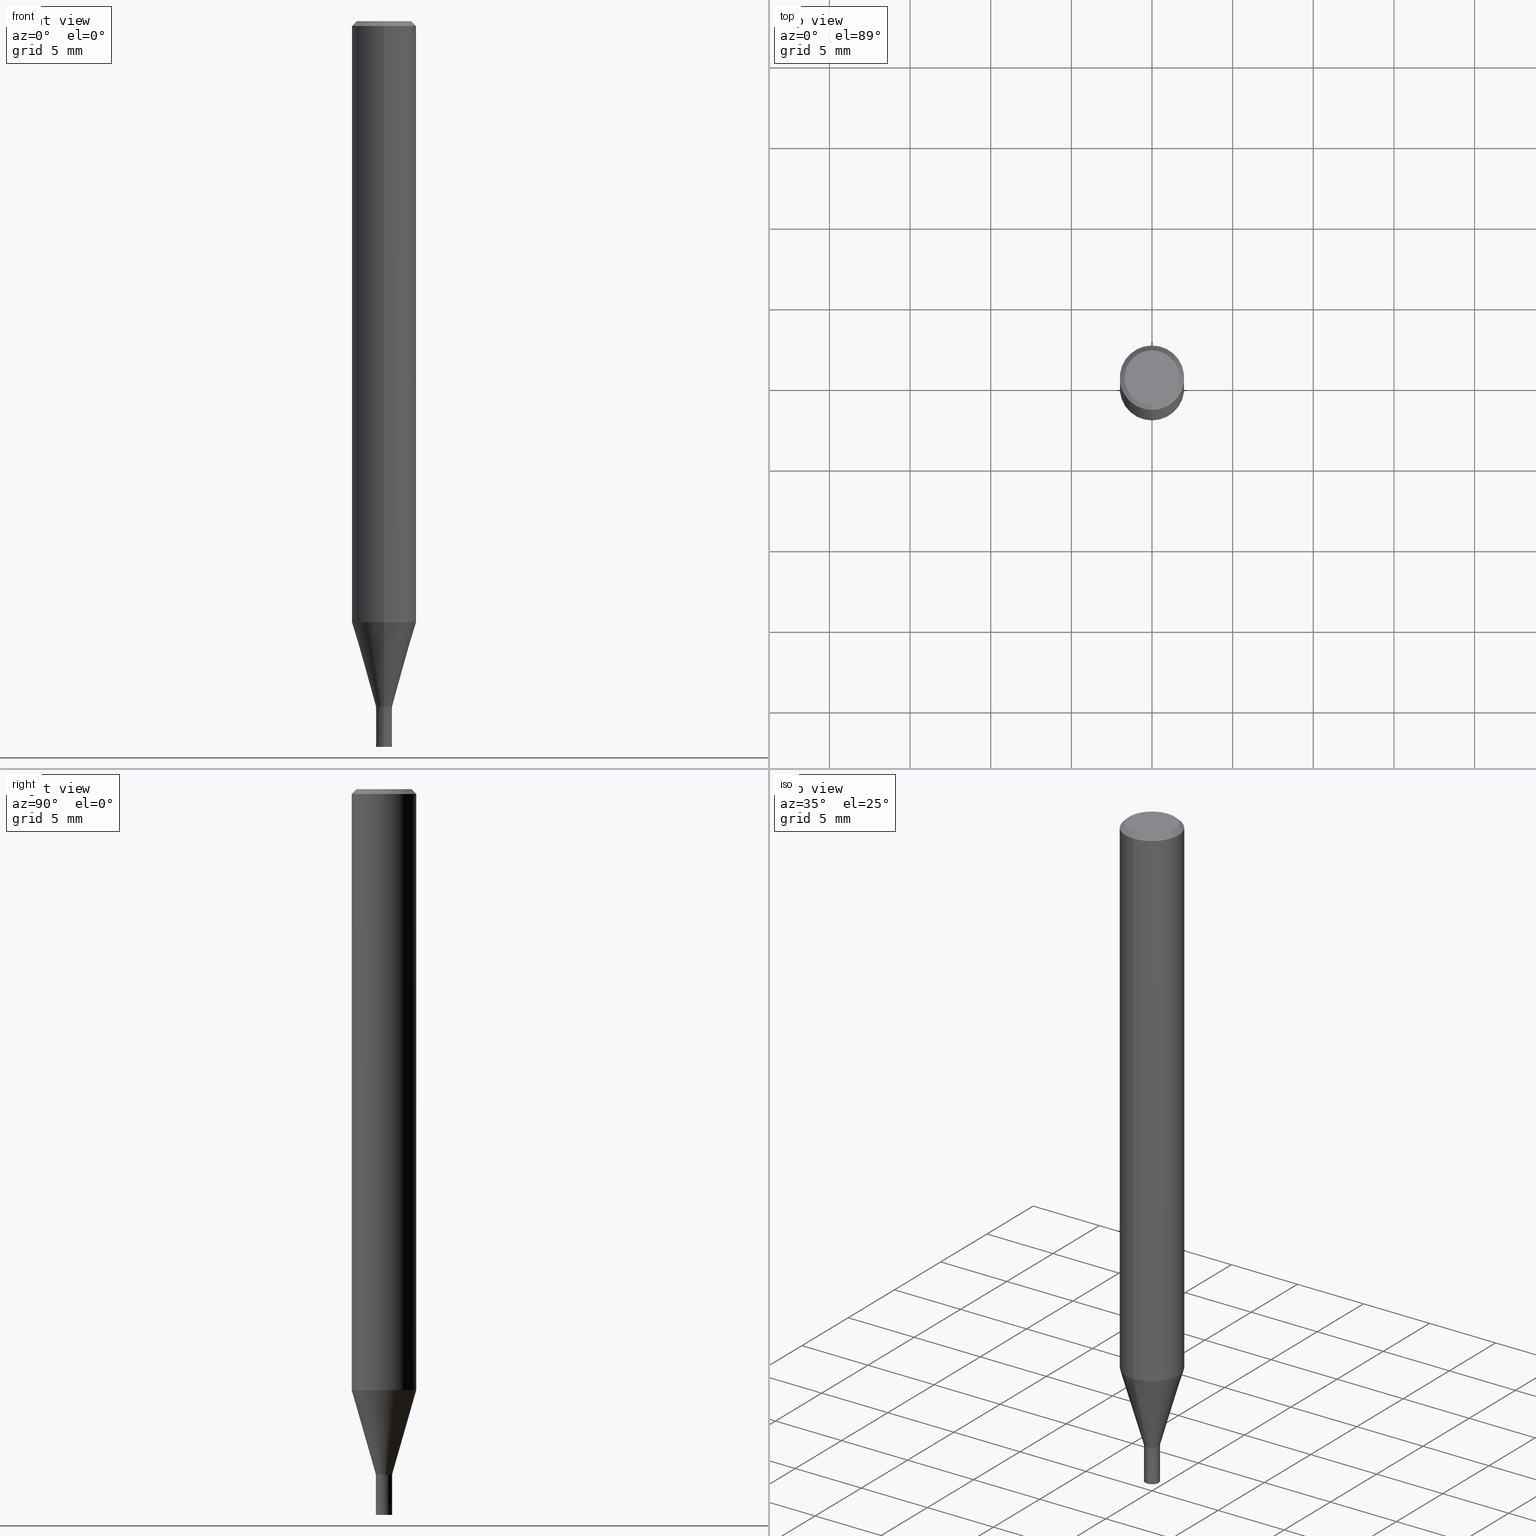
[diagram: canonical four-view strip — front | top / right | iso, engineering-drawing reading convention]
A machine part, canonical four-view strip (front | top / right | iso — engineering-drawing reading convention). The complete STEP part file that produces these views, byte-faithful:
ISO-10303-21;
HEADER;
FILE_DESCRIPTION(('no description'),'unknown implementation level');
FILE_NAME('HMS3010-0250-Huellk.stp','  ',('CIMSOURCE GmbH'),('CADClick - KiM GmbH - www.kimweb.de'),'unknown preprocess','ACIS','unknown authorization');
FILE_SCHEMA(('automotive_design'));
ENDSEC;
DATA;
#1=MECHANICAL_DESIGN_GEOMETRIC_PRESENTATION_REPRESENTATION(' ',(#14,#15,#16,#17,#18,#19,#20,#21,#22,#23,#24,#25,#26,#27,#28,#29,#30,#31,#32,#33,#34,#35,#36,#37,#38,#39,#40,#41,#42,#43,#44,#45,#46,#47,#48,#49,#50,#51,#52,#53,#54,#55,#56,#57,#58,#59,#60,#61,#62,#63,#64,#65,#66,#67,#68,#69,#70,#71,#72,#73,#74,#75,#76,#77,#78,#79,#80,#81,#82,#83,#84,#85,#86,#87,#88,#89),#10);
#2=PRODUCT_DEFINITION_CONTEXT('',#90,'design');
#3=APPLICATION_PROTOCOL_DEFINITION('INTERNATIONAL STANDARD','automotive_design',1994,#90);
#4=PRODUCT_CATEGORY_RELATIONSHIP('NONE','NONE',#91,#92);
#5=SHAPE_DEFINITION_REPRESENTATION(#93,#94);
#6=PRODUCT_DEFINITION_CONTEXT('',#95,'design');
#7=APPLICATION_PROTOCOL_DEFINITION('INTERNATIONAL STANDARD','automotive_design',1994,#95);
#8=PRODUCT_CATEGORY_RELATIONSHIP('NONE','NONE',#96,#97);
#9=SHAPE_DEFINITION_REPRESENTATION(#98,#99);
#10= (GEOMETRIC_REPRESENTATION_CONTEXT(3)GLOBAL_UNCERTAINTY_ASSIGNED_CONTEXT((#102))GLOBAL_UNIT_ASSIGNED_CONTEXT((#104,#105,#106))REPRESENTATION_CONTEXT('NONE','WORKSPACE'));
#14=STYLED_ITEM('',(#108),#109);
#15=STYLED_ITEM('',(#110),#111);
#16=STYLED_ITEM('',(#112),#113);
#17=STYLED_ITEM('',(#114),#115);
#18=STYLED_ITEM('',(#116),#117);
#19=STYLED_ITEM('',(#118),#119);
#20=STYLED_ITEM('',(#120),#121);
#21=STYLED_ITEM('',(#122),#123);
#22=STYLED_ITEM('',(#124),#125);
#23=STYLED_ITEM('',(#126),#127);
#24=STYLED_ITEM('',(#128),#129);
#25=STYLED_ITEM('',(#130),#131);
#26=STYLED_ITEM('',(#132),#133);
#27=STYLED_ITEM('',(#134),#135);
#28=STYLED_ITEM('',(#136),#137);
#29=STYLED_ITEM('',(#138),#139);
#30=STYLED_ITEM('',(#140),#141);
#31=STYLED_ITEM('',(#142),#143);
#32=STYLED_ITEM('',(#144),#145);
#33=STYLED_ITEM('',(#146),#147);
#34=STYLED_ITEM('',(#148),#149);
#35=STYLED_ITEM('',(#150),#151);
#36=STYLED_ITEM('',(#152),#153);
#37=STYLED_ITEM('',(#154),#155);
#38=STYLED_ITEM('',(#156),#157);
#39=STYLED_ITEM('',(#158),#159);
#40=STYLED_ITEM('',(#160),#161);
#41=STYLED_ITEM('',(#162),#163);
#42=STYLED_ITEM('',(#164),#165);
#43=STYLED_ITEM('',(#166),#167);
#44=STYLED_ITEM('',(#168),#169);
#45=STYLED_ITEM('',(#170),#171);
#46=STYLED_ITEM('',(#172),#173);
#47=STYLED_ITEM('',(#174),#175);
#48=STYLED_ITEM('',(#176),#177);
#49=STYLED_ITEM('',(#178),#179);
#50=STYLED_ITEM('',(#180),#181);
#51=STYLED_ITEM('',(#182),#183);
#52=STYLED_ITEM('',(#184),#185);
#53=STYLED_ITEM('',(#186),#187);
#54=STYLED_ITEM('',(#188),#189);
#55=STYLED_ITEM('',(#190),#191);
#56=STYLED_ITEM('',(#192),#193);
#57=STYLED_ITEM('',(#194),#195);
#58=STYLED_ITEM('',(#196),#197);
#59=STYLED_ITEM('',(#198),#199);
#60=STYLED_ITEM('',(#200),#201);
#61=STYLED_ITEM('',(#202),#203);
#62=STYLED_ITEM('',(#204),#205);
#63=STYLED_ITEM('',(#206),#207);
#64=STYLED_ITEM('',(#208),#209);
#65=STYLED_ITEM('',(#210),#211);
#66=STYLED_ITEM('',(#212),#213);
#67=STYLED_ITEM('',(#214),#215);
#68=STYLED_ITEM('',(#216),#217);
#69=STYLED_ITEM('',(#218),#219);
#70=STYLED_ITEM('',(#220),#221);
#71=STYLED_ITEM('',(#222),#223);
#72=STYLED_ITEM('',(#224),#225);
#73=STYLED_ITEM('',(#226),#227);
#74=STYLED_ITEM('',(#228),#229);
#75=STYLED_ITEM('',(#230),#231);
#76=STYLED_ITEM('',(#232),#233);
#77=STYLED_ITEM('',(#234),#235);
#78=STYLED_ITEM('',(#236),#237);
#79=STYLED_ITEM('',(#238),#239);
#80=STYLED_ITEM('',(#240),#241);
#81=STYLED_ITEM('',(#242),#243);
#82=STYLED_ITEM('',(#244),#245);
#83=STYLED_ITEM('',(#246),#247);
#84=STYLED_ITEM('',(#248),#249);
#85=STYLED_ITEM('',(#250),#251);
#86=STYLED_ITEM('',(#252),#253);
#87=STYLED_ITEM('',(#254),#255);
#88=STYLED_ITEM('',(#256),#257);
#89=STYLED_ITEM('',(#258),#259);
#90=APPLICATION_CONTEXT(' ');
#91=PRODUCT_CATEGORY('part','NONE');
#92=PRODUCT_RELATED_PRODUCT_CATEGORY('detail',' ',(#260));
#93=PRODUCT_DEFINITION_SHAPE('NONE','NONE',#261);
#94=ADVANCED_BREP_SHAPE_REPRESENTATION('1',(#253,#262),#10);
#95=APPLICATION_CONTEXT(' ');
#96=PRODUCT_CATEGORY('part','NONE');
#97=PRODUCT_RELATED_PRODUCT_CATEGORY('detail',' ',(#263));
#98=PRODUCT_DEFINITION_SHAPE('NONE','NONE',#264);
#99=ADVANCED_BREP_SHAPE_REPRESENTATION('2',(#215,#265),#10);
#102=UNCERTAINTY_MEASURE_WITH_UNIT(LENGTH_MEASURE(1.0E-006),#104,'','');
#104= (CONVERSION_BASED_UNIT('MILLIMETRE',#268)LENGTH_UNIT()NAMED_UNIT(#271));
#105= (NAMED_UNIT(#273)PLANE_ANGLE_UNIT()SI_UNIT($,.RADIAN.));
#106= (NAMED_UNIT(#273)SOLID_ANGLE_UNIT()SI_UNIT($,.STERADIAN.));
#108=PRESENTATION_STYLE_ASSIGNMENT((#279));
#109=EDGE_CURVE('',#113,#247,#280,.T.);
#110=PRESENTATION_STYLE_ASSIGNMENT((#281));
#111=ADVANCED_FACE('',(#282),#283,.T.);
#112=PRESENTATION_STYLE_ASSIGNMENT((#284));
#113=VERTEX_POINT('',#285);
#114=PRESENTATION_STYLE_ASSIGNMENT((#286));
#115=ADVANCED_FACE('',(#287),#288,.T.);
#116=PRESENTATION_STYLE_ASSIGNMENT((#289));
#117=EDGE_CURVE('',#163,#207,#290,.T.);
#118=PRESENTATION_STYLE_ASSIGNMENT((#291));
#119=ADVANCED_FACE('',(#292),#293,.T.);
#120=PRESENTATION_STYLE_ASSIGNMENT((#294));
#121=VERTEX_POINT('',#295);
#122=PRESENTATION_STYLE_ASSIGNMENT((#296));
#123=ADVANCED_FACE('',(#297),#298,.F.);
#124=PRESENTATION_STYLE_ASSIGNMENT((#299));
#125=VERTEX_POINT('',#300);
#126=PRESENTATION_STYLE_ASSIGNMENT((#301));
#127=EDGE_CURVE('',#147,#217,#302,.T.);
#128=PRESENTATION_STYLE_ASSIGNMENT((#303));
#129=EDGE_CURVE('',#259,#187,#304,.T.);
#130=PRESENTATION_STYLE_ASSIGNMENT((#305));
#131=VERTEX_POINT('',#306);
#132=PRESENTATION_STYLE_ASSIGNMENT((#307));
#133=EDGE_CURVE('',#217,#247,#308,.T.);
#134=PRESENTATION_STYLE_ASSIGNMENT((#309));
#135=EDGE_CURVE('',#197,#157,#310,.T.);
#136=PRESENTATION_STYLE_ASSIGNMENT((#311));
#137=EDGE_CURVE('',#183,#169,#312,.T.);
#138=PRESENTATION_STYLE_ASSIGNMENT((#313));
#139=ADVANCED_FACE('',(#314),#315,.T.);
#140=PRESENTATION_STYLE_ASSIGNMENT((#316));
#141=ADVANCED_FACE('',(#317,#318),#319,.T.);
#142=PRESENTATION_STYLE_ASSIGNMENT((#320));
#143=EDGE_CURVE('',#231,#125,#321,.T.);
#144=PRESENTATION_STYLE_ASSIGNMENT((#322));
#145=VERTEX_POINT('',#323);
#146=PRESENTATION_STYLE_ASSIGNMENT((#324));
#147=VERTEX_POINT('',#325);
#148=PRESENTATION_STYLE_ASSIGNMENT((#326));
#149=VERTEX_POINT('',#327);
#150=PRESENTATION_STYLE_ASSIGNMENT((#328));
#151=ADVANCED_FACE('',(#329),#330,.F.);
#152=PRESENTATION_STYLE_ASSIGNMENT((#331));
#153=EDGE_CURVE('',#259,#145,#332,.T.);
#154=PRESENTATION_STYLE_ASSIGNMENT((#333));
#155=EDGE_CURVE('',#207,#163,#334,.T.);
#156=PRESENTATION_STYLE_ASSIGNMENT((#335));
#157=VERTEX_POINT('',#336);
#158=PRESENTATION_STYLE_ASSIGNMENT((#337));
#159=EDGE_CURVE('',#247,#113,#338,.T.);
#160=PRESENTATION_STYLE_ASSIGNMENT((#339));
#161=EDGE_CURVE('',#231,#225,#340,.T.);
#162=PRESENTATION_STYLE_ASSIGNMENT((#341));
#163=VERTEX_POINT('',#342);
#164=PRESENTATION_STYLE_ASSIGNMENT((#343));
#165=ADVANCED_FACE('',(#344),#345,.T.);
#166=PRESENTATION_STYLE_ASSIGNMENT((#346));
#167=EDGE_CURVE('',#131,#245,#347,.T.);
#168=PRESENTATION_STYLE_ASSIGNMENT((#348));
#169=VERTEX_POINT('',#349);
#170=PRESENTATION_STYLE_ASSIGNMENT((#350));
#171=EDGE_CURVE('',#149,#125,#351,.T.);
#172=PRESENTATION_STYLE_ASSIGNMENT((#352));
#173=EDGE_CURVE('',#169,#121,#353,.T.);
#174=PRESENTATION_STYLE_ASSIGNMENT((#354));
#175=EDGE_CURVE('',#209,#145,#355,.T.);
#176=PRESENTATION_STYLE_ASSIGNMENT((#356));
#177=VERTEX_POINT('',#357);
#178=PRESENTATION_STYLE_ASSIGNMENT((#358));
#179=EDGE_CURVE('',#217,#147,#359,.T.);
#180=PRESENTATION_STYLE_ASSIGNMENT((#360));
#181=ADVANCED_FACE('',(#361),#362,.T.);
#182=PRESENTATION_STYLE_ASSIGNMENT((#363));
#183=VERTEX_POINT('',#364);
#184=PRESENTATION_STYLE_ASSIGNMENT((#365));
#185=EDGE_CURVE('',#163,#157,#366,.T.);
#186=PRESENTATION_STYLE_ASSIGNMENT((#367));
#187=VERTEX_POINT('',#368);
#188=PRESENTATION_STYLE_ASSIGNMENT((#369));
#189=EDGE_CURVE('',#197,#207,#370,.T.);
#190=PRESENTATION_STYLE_ASSIGNMENT((#371));
#191=ADVANCED_FACE('',(#372),#373,.T.);
#192=PRESENTATION_STYLE_ASSIGNMENT((#374));
#193=EDGE_CURVE('',#125,#149,#375,.T.);
#194=PRESENTATION_STYLE_ASSIGNMENT((#376));
#195=EDGE_CURVE('',#245,#121,#377,.T.);
#196=PRESENTATION_STYLE_ASSIGNMENT((#378));
#197=VERTEX_POINT('',#379);
#198=PRESENTATION_STYLE_ASSIGNMENT((#380));
#199=EDGE_CURVE('',#169,#183,#381,.T.);
#200=PRESENTATION_STYLE_ASSIGNMENT((#382));
#201=EDGE_CURVE('',#149,#225,#383,.T.);
#202=PRESENTATION_STYLE_ASSIGNMENT((#384));
#203=ADVANCED_FACE('',(#385,#386),#387,.T.);
#204=PRESENTATION_STYLE_ASSIGNMENT((#388));
#205=ADVANCED_FACE('',(#389),#390,.T.);
#206=PRESENTATION_STYLE_ASSIGNMENT((#391));
#207=VERTEX_POINT('',#392);
#208=PRESENTATION_STYLE_ASSIGNMENT((#393));
#209=VERTEX_POINT('',#394);
#210=PRESENTATION_STYLE_ASSIGNMENT((#395));
#211=EDGE_CURVE('',#187,#259,#396,.T.);
#212=PRESENTATION_STYLE_ASSIGNMENT((#397));
#213=EDGE_CURVE('',#131,#177,#398,.T.);
#214=PRESENTATION_STYLE_ASSIGNMENT((#399));
#215=MANIFOLD_SOLID_BREP('2',#400);
#216=PRESENTATION_STYLE_ASSIGNMENT((#401));
#217=VERTEX_POINT('',#402);
#218=PRESENTATION_STYLE_ASSIGNMENT((#403));
#219=ADVANCED_FACE('',(#404,#405),#406,.T.);
#220=PRESENTATION_STYLE_ASSIGNMENT((#407));
#221=EDGE_CURVE('',#209,#187,#408,.T.);
#222=PRESENTATION_STYLE_ASSIGNMENT((#409));
#223=EDGE_CURVE('',#145,#209,#410,.T.);
#224=PRESENTATION_STYLE_ASSIGNMENT((#411));
#225=VERTEX_POINT('',#412);
#226=PRESENTATION_STYLE_ASSIGNMENT((#413));
#227=EDGE_CURVE('',#113,#147,#414,.T.);
#228=PRESENTATION_STYLE_ASSIGNMENT((#415));
#229=ADVANCED_FACE('',(#416),#417,.T.);
#230=PRESENTATION_STYLE_ASSIGNMENT((#418));
#231=VERTEX_POINT('',#419);
#232=PRESENTATION_STYLE_ASSIGNMENT((#420));
#233=EDGE_CURVE('',#225,#231,#421,.T.);
#234=PRESENTATION_STYLE_ASSIGNMENT((#422));
#235=EDGE_CURVE('',#121,#245,#423,.T.);
#236=PRESENTATION_STYLE_ASSIGNMENT((#424));
#237=EDGE_CURVE('',#121,#177,#425,.T.);
#238=PRESENTATION_STYLE_ASSIGNMENT((#426));
#239=ADVANCED_FACE('',(#427),#428,.T.);
#240=PRESENTATION_STYLE_ASSIGNMENT((#429));
#241=ADVANCED_FACE('',(#430),#431,.T.);
#242=PRESENTATION_STYLE_ASSIGNMENT((#432));
#243=EDGE_CURVE('',#245,#183,#433,.T.);
#244=PRESENTATION_STYLE_ASSIGNMENT((#434));
#245=VERTEX_POINT('',#435);
#246=PRESENTATION_STYLE_ASSIGNMENT((#436));
#247=VERTEX_POINT('',#437);
#248=PRESENTATION_STYLE_ASSIGNMENT((#438));
#249=ADVANCED_FACE('',(#439,#440),#441,.T.);
#250=PRESENTATION_STYLE_ASSIGNMENT((#442));
#251=ADVANCED_FACE('',(#443),#444,.T.);
#252=PRESENTATION_STYLE_ASSIGNMENT((#445));
#253=MANIFOLD_SOLID_BREP('1',#446);
#254=PRESENTATION_STYLE_ASSIGNMENT((#447));
#255=EDGE_CURVE('',#157,#197,#448,.T.);
#256=PRESENTATION_STYLE_ASSIGNMENT((#449));
#257=EDGE_CURVE('',#177,#131,#450,.T.);
#258=PRESENTATION_STYLE_ASSIGNMENT((#451));
#259=VERTEX_POINT('',#452);
#260=PRODUCT('1','1','PART-1-DESC',(#453));
#261=PRODUCT_DEFINITION('NONE','NONE',#454,#2);
#262=AXIS2_PLACEMENT_3D('',#455,#456,#457);
#263=PRODUCT('2','2','PART-2-DESC',(#458));
#264=PRODUCT_DEFINITION('NONE','NONE',#459,#6);
#265=AXIS2_PLACEMENT_3D('',#460,#461,#462);
#268=LENGTH_MEASURE_WITH_UNIT(LENGTH_MEASURE(1.0),#463);
#271=DIMENSIONAL_EXPONENTS(1.0,0.0,0.0,0.0,0.0,0.0,0.0);
#273=DIMENSIONAL_EXPONENTS(0.0,0.0,0.0,0.0,0.0,0.0,0.0);
#279=CURVE_STYLE('',#464,POSITIVE_LENGTH_MEASURE(1.0E-006),#465);
#280=CIRCLE('',#466,0.225);
#281=SURFACE_STYLE_USAGE(.BOTH.,#467);
#282=FACE_OUTER_BOUND('',#468,.T.);
#283=PLANE('',#469);
#284=POINT_STYLE(' ',#470,POSITIVE_LENGTH_MEASURE(1.0E-006),#471);
#285=CARTESIAN_POINT('',(2.75536429610035E-017,-0.225,-44.9));
#286=SURFACE_STYLE_USAGE(.BOTH.,#472);
#287=FACE_OUTER_BOUND('',#473,.T.);
#288=CONICAL_SURFACE('',#474,1.24995,0.279258842899557);
#289=CURVE_STYLE('',#475,POSITIVE_LENGTH_MEASURE(1.0E-006),#476);
#290=CIRCLE('',#477,1.99995);
#291=SURFACE_STYLE_USAGE(.BOTH.,#478);
#292=FACE_OUTER_BOUND('',#479,.T.);
#293=CONICAL_SURFACE('',#480,1.24995,0.279258842899557);
#294=POINT_STYLE(' ',#481,POSITIVE_LENGTH_MEASURE(1.0E-006),#482);
#295=CARTESIAN_POINT('',(0.0,2.0,-0.299999999999997));
#296=SURFACE_STYLE_USAGE(.BOTH.,#483);
#297=FACE_OUTER_BOUND('',#484,.T.);
#298=CYLINDRICAL_SURFACE('',#485,0.225);
#299=POINT_STYLE(' ',#486,POSITIVE_LENGTH_MEASURE(1.0E-006),#487);
#300=CARTESIAN_POINT('',(0.0,0.5,-45.0));
#301=CURVE_STYLE('',#488,POSITIVE_LENGTH_MEASURE(1.0E-006),#489);
#302=CIRCLE('',#490,0.225);
#303=CURVE_STYLE('',#491,POSITIVE_LENGTH_MEASURE(1.0E-006),#492);
#304=CIRCLE('',#493,0.225);
#305=POINT_STYLE(' ',#494,POSITIVE_LENGTH_MEASURE(1.0E-006),#495);
#306=CARTESIAN_POINT('',(2.44921270764475E-016,-2.0,-37.269));
#307=CURVE_STYLE('',#496,POSITIVE_LENGTH_MEASURE(1.0E-006),#497);
#308=LINE('',#498,#499);
#309=CURVE_STYLE('',#500,POSITIVE_LENGTH_MEASURE(1.0E-006),#501);
#310=CIRCLE('',#502,0.49995);
#311=CURVE_STYLE('',#503,POSITIVE_LENGTH_MEASURE(1.0E-006),#504);
#312=CIRCLE('',#505,1.7);
#313=SURFACE_STYLE_USAGE(.BOTH.,#506);
#314=FACE_OUTER_BOUND('',#507,.T.);
#315=CYLINDRICAL_SURFACE('',#508,2.0);
#316=SURFACE_STYLE_USAGE(.BOTH.,#509);
#317=FACE_OUTER_BOUND('',#510,.T.);
#318=FACE_BOUND('',#511,.T.);
#319=PLANE('',#512);
#320=CURVE_STYLE('',#513,POSITIVE_LENGTH_MEASURE(1.0E-006),#514);
#321=LINE('',#515,#516);
#322=POINT_STYLE(' ',#517,POSITIVE_LENGTH_MEASURE(1.0E-006),#518);
#323=CARTESIAN_POINT('',(2.75536429610035E-017,-0.225,-42.5));
#324=POINT_STYLE(' ',#519,POSITIVE_LENGTH_MEASURE(1.0E-006),#520);
#325=CARTESIAN_POINT('',(2.75536429610035E-017,-0.225,-42.5));
#326=POINT_STYLE(' ',#521,POSITIVE_LENGTH_MEASURE(1.0E-006),#522);
#327=CARTESIAN_POINT('',(6.12303176911189E-017,-0.5,-45.0));
#328=SURFACE_STYLE_USAGE(.BOTH.,#523);
#329=FACE_OUTER_BOUND('',#524,.T.);
#330=CYLINDRICAL_SURFACE('',#525,0.225);
#331=CURVE_STYLE('',#526,POSITIVE_LENGTH_MEASURE(1.0E-006),#527);
#332=LINE('',#528,#529);
#333=CURVE_STYLE('',#530,POSITIVE_LENGTH_MEASURE(1.0E-006),#531);
#334=CIRCLE('',#532,1.99995);
#335=POINT_STYLE(' ',#533,POSITIVE_LENGTH_MEASURE(1.0E-006),#534);
#336=CARTESIAN_POINT('',(0.0,0.49995,-42.5));
#337=CURVE_STYLE('',#535,POSITIVE_LENGTH_MEASURE(1.0E-006),#536);
#338=CIRCLE('',#537,0.225);
#339=CURVE_STYLE('',#538,POSITIVE_LENGTH_MEASURE(1.0E-006),#539);
#340=CIRCLE('',#540,0.4999);
#341=POINT_STYLE(' ',#541,POSITIVE_LENGTH_MEASURE(1.0E-006),#542);
#342=CARTESIAN_POINT('',(0.0,1.99995,-37.269));
#343=SURFACE_STYLE_USAGE(.BOTH.,#543);
#344=FACE_OUTER_BOUND('',#544,.T.);
#345=PLANE('',#545);
#346=CURVE_STYLE('',#546,POSITIVE_LENGTH_MEASURE(1.0E-006),#547);
#347=LINE('',#548,#549);
#348=POINT_STYLE(' ',#550,POSITIVE_LENGTH_MEASURE(1.0E-006),#551);
#349=CARTESIAN_POINT('',(0.0,1.7,0.0));
#350=CURVE_STYLE('',#552,POSITIVE_LENGTH_MEASURE(1.0E-006),#553);
#351=CIRCLE('',#554,0.5);
#352=CURVE_STYLE('',#555,POSITIVE_LENGTH_MEASURE(1.0E-006),#556);
#353=LINE('',#557,#558);
#354=CURVE_STYLE('',#559,POSITIVE_LENGTH_MEASURE(1.0E-006),#560);
#355=CIRCLE('',#561,0.225);
#356=POINT_STYLE(' ',#562,POSITIVE_LENGTH_MEASURE(1.0E-006),#563);
#357=CARTESIAN_POINT('',(0.0,2.0,-37.269));
#358=CURVE_STYLE('',#564,POSITIVE_LENGTH_MEASURE(1.0E-006),#565);
#359=CIRCLE('',#566,0.225);
#360=SURFACE_STYLE_USAGE(.BOTH.,#567);
#361=FACE_OUTER_BOUND('',#568,.T.);
#362=CYLINDRICAL_SURFACE('',#569,0.225);
#363=POINT_STYLE(' ',#570,POSITIVE_LENGTH_MEASURE(1.0E-006),#571);
#364=CARTESIAN_POINT('',(2.08183080149804E-016,-1.7,0.0));
#365=CURVE_STYLE('',#572,POSITIVE_LENGTH_MEASURE(1.0E-006),#573);
#366=LINE('',#574,#575);
#367=POINT_STYLE(' ',#576,POSITIVE_LENGTH_MEASURE(1.0E-006),#577);
#368=CARTESIAN_POINT('',(0.0,0.225,-45.0));
#369=CURVE_STYLE('',#578,POSITIVE_LENGTH_MEASURE(1.0E-006),#579);
#370=LINE('',#580,#581);
#371=SURFACE_STYLE_USAGE(.BOTH.,#582);
#372=FACE_OUTER_BOUND('',#583,.T.);
#373=CONICAL_SURFACE('',#584,0.49995,3.99999999786623E-005);
#374=CURVE_STYLE('',#585,POSITIVE_LENGTH_MEASURE(1.0E-006),#586);
#375=CIRCLE('',#587,0.5);
#376=CURVE_STYLE('',#588,POSITIVE_LENGTH_MEASURE(1.0E-006),#589);
#377=CIRCLE('',#590,2.0);
#378=POINT_STYLE(' ',#591,POSITIVE_LENGTH_MEASURE(1.0E-006),#592);
#379=CARTESIAN_POINT('',(6.12241946593498E-017,-0.49995,-42.5));
#380=CURVE_STYLE('',#593,POSITIVE_LENGTH_MEASURE(1.0E-006),#594);
#381=CIRCLE('',#595,1.7);
#382=CURVE_STYLE('',#596,POSITIVE_LENGTH_MEASURE(1.0E-006),#597);
#383=LINE('',#598,#599);
#384=SURFACE_STYLE_USAGE(.BOTH.,#600);
#385=FACE_OUTER_BOUND('',#601,.T.);
#386=FACE_BOUND('',#602,.T.);
#387=PLANE('',#603);
#388=SURFACE_STYLE_USAGE(.BOTH.,#604);
#389=FACE_OUTER_BOUND('',#605,.T.);
#390=CONICAL_SURFACE('',#606,1.85,0.785398163397453);
#391=POINT_STYLE(' ',#607,POSITIVE_LENGTH_MEASURE(1.0E-006),#608);
#392=CARTESIAN_POINT('',(2.44915147732706E-016,-1.99995,-37.269));
#393=POINT_STYLE(' ',#609,POSITIVE_LENGTH_MEASURE(1.0E-006),#610);
#394=CARTESIAN_POINT('',(0.0,0.225,-42.5));
#395=CURVE_STYLE('',#611,POSITIVE_LENGTH_MEASURE(1.0E-006),#612);
#396=CIRCLE('',#613,0.225);
#397=CURVE_STYLE('',#614,POSITIVE_LENGTH_MEASURE(1.0E-006),#615);
#398=CIRCLE('',#616,2.0);
#399=SURFACE_STYLE_USAGE(.BOTH.,#617);
#400=CLOSED_SHELL('',(#123,#251,#203,#191,#141,#151));
#401=POINT_STYLE(' ',#618,POSITIVE_LENGTH_MEASURE(1.0E-006),#619);
#402=CARTESIAN_POINT('',(0.0,0.225,-42.5));
#403=SURFACE_STYLE_USAGE(.BOTH.,#620);
#404=FACE_BOUND('',#621,.T.);
#405=FACE_OUTER_BOUND('',#622,.T.);
#406=PLANE('',#623);
#407=CURVE_STYLE('',#624,POSITIVE_LENGTH_MEASURE(1.0E-006),#625);
#408=LINE('',#626,#627);
#409=CURVE_STYLE('',#628,POSITIVE_LENGTH_MEASURE(1.0E-006),#629);
#410=CIRCLE('',#630,0.225);
#411=POINT_STYLE(' ',#631,POSITIVE_LENGTH_MEASURE(1.0E-006),#632);
#412=CARTESIAN_POINT('',(6.12180716275806E-017,-0.4999,-42.5));
#413=CURVE_STYLE('',#633,POSITIVE_LENGTH_MEASURE(1.0E-006),#634);
#414=LINE('',#635,#636);
#415=SURFACE_STYLE_USAGE(.BOTH.,#637);
#416=FACE_OUTER_BOUND('',#638,.T.);
#417=CYLINDRICAL_SURFACE('',#639,2.0);
#418=POINT_STYLE(' ',#640,POSITIVE_LENGTH_MEASURE(1.0E-006),#641);
#419=CARTESIAN_POINT('',(0.0,0.4999,-42.5));
#420=CURVE_STYLE('',#642,POSITIVE_LENGTH_MEASURE(1.0E-006),#643);
#421=CIRCLE('',#644,0.4999);
#422=CURVE_STYLE('',#645,POSITIVE_LENGTH_MEASURE(1.0E-006),#646);
#423=CIRCLE('',#647,2.0);
#424=CURVE_STYLE('',#648,POSITIVE_LENGTH_MEASURE(1.0E-006),#649);
#425=LINE('',#650,#651);
#426=SURFACE_STYLE_USAGE(.BOTH.,#652);
#427=FACE_OUTER_BOUND('',#653,.T.);
#428=CONICAL_SURFACE('',#654,1.85,0.785398163397453);
#429=SURFACE_STYLE_USAGE(.BOTH.,#655);
#430=FACE_OUTER_BOUND('',#656,.T.);
#431=CYLINDRICAL_SURFACE('',#657,0.225);
#432=CURVE_STYLE('',#658,POSITIVE_LENGTH_MEASURE(1.0E-006),#659);
#433=LINE('',#660,#661);
#434=POINT_STYLE(' ',#662,POSITIVE_LENGTH_MEASURE(1.0E-006),#663);
#435=CARTESIAN_POINT('',(2.44921270764475E-016,-2.0,-0.299999999999997));
#436=POINT_STYLE(' ',#664,POSITIVE_LENGTH_MEASURE(1.0E-006),#665);
#437=CARTESIAN_POINT('',(0.0,0.225,-44.9));
#438=SURFACE_STYLE_USAGE(.BOTH.,#666);
#439=FACE_OUTER_BOUND('',#667,.T.);
#440=FACE_BOUND('',#668,.T.);
#441=PLANE('',#669);
#442=SURFACE_STYLE_USAGE(.BOTH.,#670);
#443=FACE_OUTER_BOUND('',#671,.T.);
#444=CONICAL_SURFACE('',#672,0.49995,3.99999999786623E-005);
#445=SURFACE_STYLE_USAGE(.BOTH.,#673);
#446=CLOSED_SHELL('',(#181,#115,#229,#205,#249,#111,#239,#139,#119,#219,#241,#165));
#447=CURVE_STYLE('',#674,POSITIVE_LENGTH_MEASURE(1.0E-006),#675);
#448=CIRCLE('',#676,0.49995);
#449=CURVE_STYLE('',#677,POSITIVE_LENGTH_MEASURE(1.0E-006),#678);
#450=CIRCLE('',#679,2.0);
#451=POINT_STYLE(' ',#680,POSITIVE_LENGTH_MEASURE(1.0E-006),#681);
#452=CARTESIAN_POINT('',(2.75536429610035E-017,-0.225,-45.0));
#453=PRODUCT_CONTEXT('',#90,'mechanical');
#454=PRODUCT_DEFINITION_FORMATION_WITH_SPECIFIED_SOURCE(' ','NONE',#260,.NOT_KNOWN.);
#455=CARTESIAN_POINT('',(0.0,0.0,0.0));
#456=DIRECTION('',(0.0,0.0,1.0));
#457=DIRECTION('',(1.0,0.0,0.0));
#458=PRODUCT_CONTEXT('',#95,'mechanical');
#459=PRODUCT_DEFINITION_FORMATION_WITH_SPECIFIED_SOURCE(' ','NONE',#263,.NOT_KNOWN.);
#460=CARTESIAN_POINT('',(0.0,0.0,0.0));
#461=DIRECTION('',(0.0,0.0,1.0));
#462=DIRECTION('',(1.0,0.0,0.0));
#463= (NAMED_UNIT(#271)LENGTH_UNIT()SI_UNIT(.MILLI.,.METRE.));
#464=DRAUGHTING_PRE_DEFINED_CURVE_FONT('continuous');
#465=COLOUR_RGB('',0.498039215803146,0.498039215803146,0.498039215803146);
#466=AXIS2_PLACEMENT_3D('',#683,#684,#685);
#467=SURFACE_SIDE_STYLE('',(#686));
#468=EDGE_LOOP('',(#687,#688));
#469=AXIS2_PLACEMENT_3D('',#689,#690,#691);
#470=PRE_DEFINED_MARKER('');
#471=COLOUR_RGB('',0.498039215803146,0.498039215803146,0.498039215803146);
#472=SURFACE_SIDE_STYLE('',(#692));
#473=EDGE_LOOP('',(#693,#694,#695,#696));
#474=AXIS2_PLACEMENT_3D('',#697,#698,#699);
#475=DRAUGHTING_PRE_DEFINED_CURVE_FONT('continuous');
#476=COLOUR_RGB('',0.498039215803146,0.498039215803146,0.498039215803146);
#477=AXIS2_PLACEMENT_3D('',#700,#701,#702);
#478=SURFACE_SIDE_STYLE('',(#703));
#479=EDGE_LOOP('',(#704,#705,#706,#707));
#480=AXIS2_PLACEMENT_3D('',#708,#709,#710);
#481=PRE_DEFINED_MARKER('');
#482=COLOUR_RGB('',0.498039215803146,0.498039215803146,0.498039215803146);
#483=SURFACE_SIDE_STYLE('',(#711));
#484=EDGE_LOOP('',(#712,#713,#714,#715));
#485=AXIS2_PLACEMENT_3D('',#716,#717,#718);
#486=PRE_DEFINED_MARKER('');
#487=COLOUR_RGB('',0.800000011920929,0.800000011920929,0.800000011920929);
#488=DRAUGHTING_PRE_DEFINED_CURVE_FONT('continuous');
#489=COLOUR_RGB('',0.498039215803146,0.498039215803146,0.498039215803146);
#490=AXIS2_PLACEMENT_3D('',#719,#720,#721);
#491=DRAUGHTING_PRE_DEFINED_CURVE_FONT('continuous');
#492=COLOUR_RGB('',0.800000011920929,0.800000011920929,0.800000011920929);
#493=AXIS2_PLACEMENT_3D('',#722,#723,#724);
#494=PRE_DEFINED_MARKER('');
#495=COLOUR_RGB('',0.498039215803146,0.498039215803146,0.498039215803146);
#496=DRAUGHTING_PRE_DEFINED_CURVE_FONT('continuous');
#497=COLOUR_RGB('',0.498039215803146,0.498039215803146,0.498039215803146);
#498=CARTESIAN_POINT('',(-2.75536429610035E-017,0.225,-43.7));
#499=VECTOR('',#725,1.0);
#500=DRAUGHTING_PRE_DEFINED_CURVE_FONT('continuous');
#501=COLOUR_RGB('',0.498039215803146,0.498039215803146,0.498039215803146);
#502=AXIS2_PLACEMENT_3D('',#726,#727,#728);
#503=DRAUGHTING_PRE_DEFINED_CURVE_FONT('continuous');
#504=COLOUR_RGB('',0.498039215803146,0.498039215803146,0.498039215803146);
#505=AXIS2_PLACEMENT_3D('',#729,#730,#731);
#506=SURFACE_SIDE_STYLE('',(#732));
#507=EDGE_LOOP('',(#733,#734,#735,#736));
#508=AXIS2_PLACEMENT_3D('',#737,#738,#739);
#509=SURFACE_SIDE_STYLE('',(#740));
#510=EDGE_LOOP('',(#741,#742));
#511=EDGE_LOOP('',(#743,#744));
#512=AXIS2_PLACEMENT_3D('',#745,#746,#747);
#513=DRAUGHTING_PRE_DEFINED_CURVE_FONT('continuous');
#514=COLOUR_RGB('',0.800000011920929,0.800000011920929,0.800000011920929);
#515=CARTESIAN_POINT('',(-6.12241946593498E-017,0.49995,-43.75));
#516=VECTOR('',#748,1.0);
#517=PRE_DEFINED_MARKER('');
#518=COLOUR_RGB('',0.800000011920929,0.800000011920929,0.800000011920929);
#519=PRE_DEFINED_MARKER('');
#520=COLOUR_RGB('',0.498039215803146,0.498039215803146,0.498039215803146);
#521=PRE_DEFINED_MARKER('');
#522=COLOUR_RGB('',0.800000011920929,0.800000011920929,0.800000011920929);
#523=SURFACE_SIDE_STYLE('',(#749));
#524=EDGE_LOOP('',(#750,#751,#752,#753));
#525=AXIS2_PLACEMENT_3D('',#754,#755,#756);
#526=DRAUGHTING_PRE_DEFINED_CURVE_FONT('continuous');
#527=COLOUR_RGB('',0.800000011920929,0.800000011920929,0.800000011920929);
#528=CARTESIAN_POINT('',(2.75536429610035E-017,-0.225,-43.75));
#529=VECTOR('',#757,1.0);
#530=DRAUGHTING_PRE_DEFINED_CURVE_FONT('continuous');
#531=COLOUR_RGB('',0.498039215803146,0.498039215803146,0.498039215803146);
#532=AXIS2_PLACEMENT_3D('',#758,#759,#760);
#533=PRE_DEFINED_MARKER('');
#534=COLOUR_RGB('',0.498039215803146,0.498039215803146,0.498039215803146);
#535=DRAUGHTING_PRE_DEFINED_CURVE_FONT('continuous');
#536=COLOUR_RGB('',0.498039215803146,0.498039215803146,0.498039215803146);
#537=AXIS2_PLACEMENT_3D('',#761,#762,#763);
#538=DRAUGHTING_PRE_DEFINED_CURVE_FONT('continuous');
#539=COLOUR_RGB('',0.800000011920929,0.800000011920929,0.800000011920929);
#540=AXIS2_PLACEMENT_3D('',#764,#765,#766);
#541=PRE_DEFINED_MARKER('');
#542=COLOUR_RGB('',0.498039215803146,0.498039215803146,0.498039215803146);
#543=SURFACE_SIDE_STYLE('',(#767));
#544=EDGE_LOOP('',(#768,#769));
#545=AXIS2_PLACEMENT_3D('',#770,#771,#772);
#546=DRAUGHTING_PRE_DEFINED_CURVE_FONT('continuous');
#547=COLOUR_RGB('',0.498039215803146,0.498039215803146,0.498039215803146);
#548=CARTESIAN_POINT('',(2.44921270764475E-016,-2.0,-18.7845));
#549=VECTOR('',#773,1.0);
#550=PRE_DEFINED_MARKER('');
#551=COLOUR_RGB('',0.498039215803146,0.498039215803146,0.498039215803146);
#552=DRAUGHTING_PRE_DEFINED_CURVE_FONT('continuous');
#553=COLOUR_RGB('',0.800000011920929,0.800000011920929,0.800000011920929);
#554=AXIS2_PLACEMENT_3D('',#774,#775,#776);
#555=DRAUGHTING_PRE_DEFINED_CURVE_FONT('continuous');
#556=COLOUR_RGB('',0.498039215803146,0.498039215803146,0.498039215803146);
#557=CARTESIAN_POINT('',(-2.2655217545714E-016,1.85,-0.149999999999999));
#558=VECTOR('',#777,1.0);
#559=DRAUGHTING_PRE_DEFINED_CURVE_FONT('continuous');
#560=COLOUR_RGB('',0.800000011920929,0.800000011920929,0.800000011920929);
#561=AXIS2_PLACEMENT_3D('',#778,#779,#780);
#562=PRE_DEFINED_MARKER('');
#563=COLOUR_RGB('',0.498039215803146,0.498039215803146,0.498039215803146);
#564=DRAUGHTING_PRE_DEFINED_CURVE_FONT('continuous');
#565=COLOUR_RGB('',0.498039215803146,0.498039215803146,0.498039215803146);
#566=AXIS2_PLACEMENT_3D('',#781,#782,#783);
#567=SURFACE_SIDE_STYLE('',(#784));
#568=EDGE_LOOP('',(#785,#786,#787,#788));
#569=AXIS2_PLACEMENT_3D('',#789,#790,#791);
#570=PRE_DEFINED_MARKER('');
#571=COLOUR_RGB('',0.498039215803146,0.498039215803146,0.498039215803146);
#572=DRAUGHTING_PRE_DEFINED_CURVE_FONT('continuous');
#573=COLOUR_RGB('',0.498039215803146,0.498039215803146,0.498039215803146);
#574=CARTESIAN_POINT('',(-1.53069671196028E-016,1.24995,-39.8845));
#575=VECTOR('',#792,1.0);
#576=PRE_DEFINED_MARKER('');
#577=COLOUR_RGB('',0.800000011920929,0.800000011920929,0.800000011920929);
#578=DRAUGHTING_PRE_DEFINED_CURVE_FONT('continuous');
#579=COLOUR_RGB('',0.498039215803146,0.498039215803146,0.498039215803146);
#580=CARTESIAN_POINT('',(1.53069671196028E-016,-1.24995,-39.8845));
#581=VECTOR('',#793,1.0);
#582=SURFACE_SIDE_STYLE('',(#794));
#583=EDGE_LOOP('',(#795,#796,#797,#798));
#584=AXIS2_PLACEMENT_3D('',#799,#800,#801);
#585=DRAUGHTING_PRE_DEFINED_CURVE_FONT('continuous');
#586=COLOUR_RGB('',0.800000011920929,0.800000011920929,0.800000011920929);
#587=AXIS2_PLACEMENT_3D('',#802,#803,#804);
#588=DRAUGHTING_PRE_DEFINED_CURVE_FONT('continuous');
#589=COLOUR_RGB('',0.498039215803146,0.498039215803146,0.498039215803146);
#590=AXIS2_PLACEMENT_3D('',#805,#806,#807);
#591=PRE_DEFINED_MARKER('');
#592=COLOUR_RGB('',0.498039215803146,0.498039215803146,0.498039215803146);
#593=DRAUGHTING_PRE_DEFINED_CURVE_FONT('continuous');
#594=COLOUR_RGB('',0.498039215803146,0.498039215803146,0.498039215803146);
#595=AXIS2_PLACEMENT_3D('',#808,#809,#810);
#596=DRAUGHTING_PRE_DEFINED_CURVE_FONT('continuous');
#597=COLOUR_RGB('',0.800000011920929,0.800000011920929,0.800000011920929);
#598=CARTESIAN_POINT('',(6.12241946593497E-017,-0.49995,-43.75));
#599=VECTOR('',#811,1.0);
#600=SURFACE_SIDE_STYLE('',(#812));
#601=EDGE_LOOP('',(#813,#814));
#602=EDGE_LOOP('',(#815,#816));
#603=AXIS2_PLACEMENT_3D('',#817,#818,#819);
#604=SURFACE_SIDE_STYLE('',(#820));
#605=EDGE_LOOP('',(#821,#822,#823,#824));
#606=AXIS2_PLACEMENT_3D('',#825,#826,#827);
#607=PRE_DEFINED_MARKER('');
#608=COLOUR_RGB('',0.498039215803146,0.498039215803146,0.498039215803146);
#609=PRE_DEFINED_MARKER('');
#610=COLOUR_RGB('',0.800000011920929,0.800000011920929,0.800000011920929);
#611=DRAUGHTING_PRE_DEFINED_CURVE_FONT('continuous');
#612=COLOUR_RGB('',0.800000011920929,0.800000011920929,0.800000011920929);
#613=AXIS2_PLACEMENT_3D('',#828,#829,#830);
#614=DRAUGHTING_PRE_DEFINED_CURVE_FONT('continuous');
#615=COLOUR_RGB('',0.498039215803146,0.498039215803146,0.498039215803146);
#616=AXIS2_PLACEMENT_3D('',#831,#832,#833);
#617=SURFACE_SIDE_STYLE('',(#834));
#618=PRE_DEFINED_MARKER('');
#619=COLOUR_RGB('',0.498039215803146,0.498039215803146,0.498039215803146);
#620=SURFACE_SIDE_STYLE('',(#835));
#621=EDGE_LOOP('',(#836,#837));
#622=EDGE_LOOP('',(#838,#839));
#623=AXIS2_PLACEMENT_3D('',#840,#841,#842);
#624=DRAUGHTING_PRE_DEFINED_CURVE_FONT('continuous');
#625=COLOUR_RGB('',0.800000011920929,0.800000011920929,0.800000011920929);
#626=CARTESIAN_POINT('',(-2.75536429610035E-017,0.225,-43.75));
#627=VECTOR('',#843,1.0);
#628=DRAUGHTING_PRE_DEFINED_CURVE_FONT('continuous');
#629=COLOUR_RGB('',0.800000011920929,0.800000011920929,0.800000011920929);
#630=AXIS2_PLACEMENT_3D('',#844,#845,#846);
#631=PRE_DEFINED_MARKER('');
#632=COLOUR_RGB('',0.800000011920929,0.800000011920929,0.800000011920929);
#633=DRAUGHTING_PRE_DEFINED_CURVE_FONT('continuous');
#634=COLOUR_RGB('',0.498039215803146,0.498039215803146,0.498039215803146);
#635=CARTESIAN_POINT('',(2.75536429610035E-017,-0.225,-43.7));
#636=VECTOR('',#847,1.0);
#637=SURFACE_SIDE_STYLE('',(#848));
#638=EDGE_LOOP('',(#849,#850,#851,#852));
#639=AXIS2_PLACEMENT_3D('',#853,#854,#855);
#640=PRE_DEFINED_MARKER('');
#641=COLOUR_RGB('',0.800000011920929,0.800000011920929,0.800000011920929);
#642=DRAUGHTING_PRE_DEFINED_CURVE_FONT('continuous');
#643=COLOUR_RGB('',0.800000011920929,0.800000011920929,0.800000011920929);
#644=AXIS2_PLACEMENT_3D('',#856,#857,#858);
#645=DRAUGHTING_PRE_DEFINED_CURVE_FONT('continuous');
#646=COLOUR_RGB('',0.498039215803146,0.498039215803146,0.498039215803146);
#647=AXIS2_PLACEMENT_3D('',#859,#860,#861);
#648=DRAUGHTING_PRE_DEFINED_CURVE_FONT('continuous');
#649=COLOUR_RGB('',0.498039215803146,0.498039215803146,0.498039215803146);
#650=CARTESIAN_POINT('',(-2.44921270764475E-016,2.0,-18.7845));
#651=VECTOR('',#862,1.0);
#652=SURFACE_SIDE_STYLE('',(#863));
#653=EDGE_LOOP('',(#864,#865,#866,#867));
#654=AXIS2_PLACEMENT_3D('',#868,#869,#870);
#655=SURFACE_SIDE_STYLE('',(#871));
#656=EDGE_LOOP('',(#872,#873,#874,#875));
#657=AXIS2_PLACEMENT_3D('',#876,#877,#878);
#658=DRAUGHTING_PRE_DEFINED_CURVE_FONT('continuous');
#659=COLOUR_RGB('',0.498039215803146,0.498039215803146,0.498039215803146);
#660=CARTESIAN_POINT('',(2.2655217545714E-016,-1.85,-0.149999999999999));
#661=VECTOR('',#879,1.0);
#662=PRE_DEFINED_MARKER('');
#663=COLOUR_RGB('',0.498039215803146,0.498039215803146,0.498039215803146);
#664=PRE_DEFINED_MARKER('');
#665=COLOUR_RGB('',0.498039215803146,0.498039215803146,0.498039215803146);
#666=SURFACE_SIDE_STYLE('',(#880));
#667=EDGE_LOOP('',(#881,#882));
#668=EDGE_LOOP('',(#883,#884));
#669=AXIS2_PLACEMENT_3D('',#885,#886,#887);
#670=SURFACE_SIDE_STYLE('',(#888));
#671=EDGE_LOOP('',(#889,#890,#891,#892));
#672=AXIS2_PLACEMENT_3D('',#893,#894,#895);
#673=SURFACE_SIDE_STYLE('',(#896));
#674=DRAUGHTING_PRE_DEFINED_CURVE_FONT('continuous');
#675=COLOUR_RGB('',0.498039215803146,0.498039215803146,0.498039215803146);
#676=AXIS2_PLACEMENT_3D('',#897,#898,#899);
#677=DRAUGHTING_PRE_DEFINED_CURVE_FONT('continuous');
#678=COLOUR_RGB('',0.498039215803146,0.498039215803146,0.498039215803146);
#679=AXIS2_PLACEMENT_3D('',#900,#901,#902);
#680=PRE_DEFINED_MARKER('');
#681=COLOUR_RGB('',0.800000011920929,0.800000011920929,0.800000011920929);
#683=CARTESIAN_POINT('',(0.0,0.0,-44.9));
#684=DIRECTION('',(0.0,0.0,-1.0));
#685=DIRECTION('',(0.0,1.0,0.0));
#686=SURFACE_STYLE_FILL_AREA(#903);
#687=ORIENTED_EDGE('',*,*,#199,.F.);
#688=ORIENTED_EDGE('',*,*,#137,.F.);
#689=CARTESIAN_POINT('',(0.0,0.85,0.0));
#690=DIRECTION('',(-0.0,0.0,1.0));
#691=DIRECTION('',(0.0,-1.0,0.0));
#692=SURFACE_STYLE_FILL_AREA(#904);
#693=ORIENTED_EDGE('',*,*,#185,.F.);
#694=ORIENTED_EDGE('',*,*,#117,.T.);
#695=ORIENTED_EDGE('',*,*,#189,.F.);
#696=ORIENTED_EDGE('',*,*,#255,.F.);
#697=CARTESIAN_POINT('',(0.0,0.0,-39.8845));
#698=DIRECTION('',(-0.0,-0.0,1.0));
#699=DIRECTION('',(0.0,1.0,0.0));
#700=CARTESIAN_POINT('',(0.0,0.0,-37.269));
#701=DIRECTION('',(0.0,0.0,-1.0));
#702=DIRECTION('',(0.0,1.0,0.0));
#703=SURFACE_STYLE_FILL_AREA(#905);
#704=ORIENTED_EDGE('',*,*,#185,.T.);
#705=ORIENTED_EDGE('',*,*,#135,.F.);
#706=ORIENTED_EDGE('',*,*,#189,.T.);
#707=ORIENTED_EDGE('',*,*,#155,.T.);
#708=CARTESIAN_POINT('',(0.0,0.0,-39.8845));
#709=DIRECTION('',(-0.0,-0.0,1.0));
#710=DIRECTION('',(0.0,1.0,0.0));
#711=SURFACE_STYLE_FILL_AREA(#906);
#712=ORIENTED_EDGE('',*,*,#221,.F.);
#713=ORIENTED_EDGE('',*,*,#223,.F.);
#714=ORIENTED_EDGE('',*,*,#153,.F.);
#715=ORIENTED_EDGE('',*,*,#129,.T.);
#716=CARTESIAN_POINT('',(0.0,0.0,-43.75));
#717=DIRECTION('',(-0.0,-0.0,1.0));
#718=DIRECTION('',(0.0,1.0,0.0));
#719=CARTESIAN_POINT('',(0.0,0.0,-42.5));
#720=DIRECTION('',(0.0,0.0,-1.0));
#721=DIRECTION('',(0.0,1.0,0.0));
#722=CARTESIAN_POINT('',(0.0,0.0,-45.0));
#723=DIRECTION('',(0.0,0.0,-1.0));
#724=DIRECTION('',(0.0,1.0,0.0));
#725=DIRECTION('',(0.0,0.0,-1.0));
#726=CARTESIAN_POINT('',(0.0,0.0,-42.5));
#727=DIRECTION('',(0.0,0.0,-1.0));
#728=DIRECTION('',(0.0,1.0,0.0));
#729=CARTESIAN_POINT('',(0.0,0.0,0.0));
#730=DIRECTION('',(0.0,0.0,-1.0));
#731=DIRECTION('',(0.0,1.0,0.0));
#732=SURFACE_STYLE_FILL_AREA(#907);
#733=ORIENTED_EDGE('',*,*,#237,.T.);
#734=ORIENTED_EDGE('',*,*,#213,.F.);
#735=ORIENTED_EDGE('',*,*,#167,.T.);
#736=ORIENTED_EDGE('',*,*,#195,.T.);
#737=CARTESIAN_POINT('',(0.0,0.0,-18.7845));
#738=DIRECTION('',(-0.0,-0.0,1.0));
#739=DIRECTION('',(0.0,1.0,0.0));
#740=SURFACE_STYLE_FILL_AREA(#908);
#741=ORIENTED_EDGE('',*,*,#193,.T.);
#742=ORIENTED_EDGE('',*,*,#171,.T.);
#743=ORIENTED_EDGE('',*,*,#211,.F.);
#744=ORIENTED_EDGE('',*,*,#129,.F.);
#745=CARTESIAN_POINT('',(0.0,0.36,-45.0));
#746=DIRECTION('',(0.0,0.0,-1.0));
#747=DIRECTION('',(0.0,1.0,0.0));
#748=DIRECTION('',(-4.89842541137023E-021,3.99999999679956E-005,-0.9999999992));
#749=SURFACE_STYLE_FILL_AREA(#909);
#750=ORIENTED_EDGE('',*,*,#221,.T.);
#751=ORIENTED_EDGE('',*,*,#211,.T.);
#752=ORIENTED_EDGE('',*,*,#153,.T.);
#753=ORIENTED_EDGE('',*,*,#175,.F.);
#754=CARTESIAN_POINT('',(0.0,0.0,-43.75));
#755=DIRECTION('',(-0.0,-0.0,1.0));
#756=DIRECTION('',(0.0,1.0,0.0));
#757=DIRECTION('',(0.0,-0.0,1.0));
#758=CARTESIAN_POINT('',(0.0,0.0,-37.269));
#759=DIRECTION('',(0.0,0.0,-1.0));
#760=DIRECTION('',(0.0,1.0,0.0));
#761=CARTESIAN_POINT('',(0.0,0.0,-44.9));
#762=DIRECTION('',(0.0,0.0,-1.0));
#763=DIRECTION('',(0.0,1.0,0.0));
#764=CARTESIAN_POINT('',(0.0,0.0,-42.5));
#765=DIRECTION('',(0.0,0.0,-1.0));
#766=DIRECTION('',(0.0,1.0,0.0));
#767=SURFACE_STYLE_FILL_AREA(#910);
#768=ORIENTED_EDGE('',*,*,#159,.T.);
#769=ORIENTED_EDGE('',*,*,#109,.T.);
#770=CARTESIAN_POINT('',(0.0,0.1125,-44.9));
#771=DIRECTION('',(0.0,0.0,-1.0));
#772=DIRECTION('',(0.0,1.0,0.0));
#773=DIRECTION('',(-0.0,-0.0,1.0));
#774=CARTESIAN_POINT('',(0.0,0.0,-45.0));
#775=DIRECTION('',(0.0,0.0,-1.0));
#776=DIRECTION('',(0.0,1.0,0.0));
#777=DIRECTION('',(-8.6592745707194E-017,0.707106781186551,-0.707106781186544));
#778=CARTESIAN_POINT('',(0.0,0.0,-42.5));
#779=DIRECTION('',(0.0,0.0,-1.0));
#780=DIRECTION('',(0.0,1.0,0.0));
#781=CARTESIAN_POINT('',(0.0,0.0,-42.5));
#782=DIRECTION('',(0.0,0.0,-1.0));
#783=DIRECTION('',(0.0,1.0,0.0));
#784=SURFACE_STYLE_FILL_AREA(#911);
#785=ORIENTED_EDGE('',*,*,#133,.F.);
#786=ORIENTED_EDGE('',*,*,#179,.T.);
#787=ORIENTED_EDGE('',*,*,#227,.F.);
#788=ORIENTED_EDGE('',*,*,#159,.F.);
#789=CARTESIAN_POINT('',(0.0,0.0,-43.7));
#790=DIRECTION('',(-0.0,-0.0,1.0));
#791=DIRECTION('',(0.0,1.0,0.0));
#792=DIRECTION('',(3.37554511665357E-017,-0.275643279664314,-0.961259997282682));
#793=DIRECTION('',(3.37554511665357E-017,-0.275643279664314,0.961259997282682));
#794=SURFACE_STYLE_FILL_AREA(#912);
#795=ORIENTED_EDGE('',*,*,#143,.T.);
#796=ORIENTED_EDGE('',*,*,#171,.F.);
#797=ORIENTED_EDGE('',*,*,#201,.T.);
#798=ORIENTED_EDGE('',*,*,#233,.T.);
#799=CARTESIAN_POINT('',(0.0,0.0,-43.75));
#800=DIRECTION('',(0.0,-0.0,-1.0));
#801=DIRECTION('',(0.0,1.0,0.0));
#802=CARTESIAN_POINT('',(0.0,0.0,-45.0));
#803=DIRECTION('',(0.0,0.0,-1.0));
#804=DIRECTION('',(0.0,1.0,0.0));
#805=CARTESIAN_POINT('',(0.0,0.0,-0.299999999999997));
#806=DIRECTION('',(0.0,0.0,-1.0));
#807=DIRECTION('',(0.0,1.0,0.0));
#808=CARTESIAN_POINT('',(0.0,0.0,0.0));
#809=DIRECTION('',(0.0,0.0,-1.0));
#810=DIRECTION('',(0.0,1.0,0.0));
#811=DIRECTION('',(-4.89842541137023E-021,3.99999999679956E-005,0.9999999992));
#812=SURFACE_STYLE_FILL_AREA(#913);
#813=ORIENTED_EDGE('',*,*,#161,.F.);
#814=ORIENTED_EDGE('',*,*,#233,.F.);
#815=ORIENTED_EDGE('',*,*,#175,.T.);
#816=ORIENTED_EDGE('',*,*,#223,.T.);
#817=CARTESIAN_POINT('',(0.0,0.36245,-42.5));
#818=DIRECTION('',(-0.0,0.0,1.0));
#819=DIRECTION('',(0.0,-1.0,0.0));
#820=SURFACE_STYLE_FILL_AREA(#914);
#821=ORIENTED_EDGE('',*,*,#173,.F.);
#822=ORIENTED_EDGE('',*,*,#199,.T.);
#823=ORIENTED_EDGE('',*,*,#243,.F.);
#824=ORIENTED_EDGE('',*,*,#235,.F.);
#825=CARTESIAN_POINT('',(0.0,0.0,-0.149999999999999));
#826=DIRECTION('',(0.0,-0.0,-1.0));
#827=DIRECTION('',(0.0,1.0,0.0));
#828=CARTESIAN_POINT('',(0.0,0.0,-45.0));
#829=DIRECTION('',(0.0,0.0,-1.0));
#830=DIRECTION('',(0.0,1.0,0.0));
#831=CARTESIAN_POINT('',(0.0,0.0,-37.269));
#832=DIRECTION('',(0.0,0.0,-1.0));
#833=DIRECTION('',(0.0,1.0,0.0));
#834=SURFACE_STYLE_FILL_AREA(#915);
#835=SURFACE_STYLE_FILL_AREA(#916);
#836=ORIENTED_EDGE('',*,*,#179,.F.);
#837=ORIENTED_EDGE('',*,*,#127,.F.);
#838=ORIENTED_EDGE('',*,*,#255,.T.);
#839=ORIENTED_EDGE('',*,*,#135,.T.);
#840=CARTESIAN_POINT('',(0.0,0.362475,-42.5));
#841=DIRECTION('',(0.0,0.0,-1.0));
#842=DIRECTION('',(0.0,1.0,0.0));
#843=DIRECTION('',(0.0,-0.0,-1.0));
#844=CARTESIAN_POINT('',(0.0,0.0,-42.5));
#845=DIRECTION('',(0.0,0.0,-1.0));
#846=DIRECTION('',(0.0,1.0,0.0));
#847=DIRECTION('',(-0.0,-0.0,1.0));
#848=SURFACE_STYLE_FILL_AREA(#917);
#849=ORIENTED_EDGE('',*,*,#237,.F.);
#850=ORIENTED_EDGE('',*,*,#235,.T.);
#851=ORIENTED_EDGE('',*,*,#167,.F.);
#852=ORIENTED_EDGE('',*,*,#257,.F.);
#853=CARTESIAN_POINT('',(0.0,0.0,-18.7845));
#854=DIRECTION('',(-0.0,-0.0,1.0));
#855=DIRECTION('',(0.0,1.0,0.0));
#856=CARTESIAN_POINT('',(0.0,0.0,-42.5));
#857=DIRECTION('',(0.0,0.0,-1.0));
#858=DIRECTION('',(0.0,1.0,0.0));
#859=CARTESIAN_POINT('',(0.0,0.0,-0.299999999999997));
#860=DIRECTION('',(0.0,0.0,-1.0));
#861=DIRECTION('',(0.0,1.0,0.0));
#862=DIRECTION('',(0.0,0.0,-1.0));
#863=SURFACE_STYLE_FILL_AREA(#918);
#864=ORIENTED_EDGE('',*,*,#173,.T.);
#865=ORIENTED_EDGE('',*,*,#195,.F.);
#866=ORIENTED_EDGE('',*,*,#243,.T.);
#867=ORIENTED_EDGE('',*,*,#137,.T.);
#868=CARTESIAN_POINT('',(0.0,0.0,-0.149999999999999));
#869=DIRECTION('',(0.0,-0.0,-1.0));
#870=DIRECTION('',(0.0,1.0,0.0));
#871=SURFACE_STYLE_FILL_AREA(#919);
#872=ORIENTED_EDGE('',*,*,#133,.T.);
#873=ORIENTED_EDGE('',*,*,#109,.F.);
#874=ORIENTED_EDGE('',*,*,#227,.T.);
#875=ORIENTED_EDGE('',*,*,#127,.T.);
#876=CARTESIAN_POINT('',(0.0,0.0,-43.7));
#877=DIRECTION('',(-0.0,-0.0,1.0));
#878=DIRECTION('',(0.0,1.0,0.0));
#879=DIRECTION('',(-8.6592745707194E-017,0.707106781186551,0.707106781186544));
#880=SURFACE_STYLE_FILL_AREA(#920);
#881=ORIENTED_EDGE('',*,*,#257,.T.);
#882=ORIENTED_EDGE('',*,*,#213,.T.);
#883=ORIENTED_EDGE('',*,*,#117,.F.);
#884=ORIENTED_EDGE('',*,*,#155,.F.);
#885=CARTESIAN_POINT('',(0.0,1.0,-37.269));
#886=DIRECTION('',(0.0,0.0,-1.0));
#887=DIRECTION('',(0.0,1.0,0.0));
#888=SURFACE_STYLE_FILL_AREA(#921);
#889=ORIENTED_EDGE('',*,*,#143,.F.);
#890=ORIENTED_EDGE('',*,*,#161,.T.);
#891=ORIENTED_EDGE('',*,*,#201,.F.);
#892=ORIENTED_EDGE('',*,*,#193,.F.);
#893=CARTESIAN_POINT('',(0.0,0.0,-43.75));
#894=DIRECTION('',(0.0,-0.0,-1.0));
#895=DIRECTION('',(0.0,1.0,0.0));
#896=SURFACE_STYLE_FILL_AREA(#922);
#897=CARTESIAN_POINT('',(0.0,0.0,-42.5));
#898=DIRECTION('',(0.0,0.0,-1.0));
#899=DIRECTION('',(0.0,1.0,0.0));
#900=CARTESIAN_POINT('',(0.0,0.0,-37.269));
#901=DIRECTION('',(0.0,0.0,-1.0));
#902=DIRECTION('',(0.0,1.0,0.0));
#903=FILL_AREA_STYLE('',(#923));
#904=FILL_AREA_STYLE('',(#924));
#905=FILL_AREA_STYLE('',(#925));
#906=FILL_AREA_STYLE('',(#926));
#907=FILL_AREA_STYLE('',(#927));
#908=FILL_AREA_STYLE('',(#928));
#909=FILL_AREA_STYLE('',(#929));
#910=FILL_AREA_STYLE('',(#930));
#911=FILL_AREA_STYLE('',(#931));
#912=FILL_AREA_STYLE('',(#932));
#913=FILL_AREA_STYLE('',(#933));
#914=FILL_AREA_STYLE('',(#934));
#915=FILL_AREA_STYLE('',(#935));
#916=FILL_AREA_STYLE('',(#936));
#917=FILL_AREA_STYLE('',(#937));
#918=FILL_AREA_STYLE('',(#938));
#919=FILL_AREA_STYLE('',(#939));
#920=FILL_AREA_STYLE('',(#940));
#921=FILL_AREA_STYLE('',(#941));
#922=FILL_AREA_STYLE('',(#942));
#923=FILL_AREA_STYLE_COLOUR('',#943);
#924=FILL_AREA_STYLE_COLOUR('',#944);
#925=FILL_AREA_STYLE_COLOUR('',#945);
#926=FILL_AREA_STYLE_COLOUR('',#946);
#927=FILL_AREA_STYLE_COLOUR('',#947);
#928=FILL_AREA_STYLE_COLOUR('',#948);
#929=FILL_AREA_STYLE_COLOUR('',#949);
#930=FILL_AREA_STYLE_COLOUR('',#950);
#931=FILL_AREA_STYLE_COLOUR('',#951);
#932=FILL_AREA_STYLE_COLOUR('',#952);
#933=FILL_AREA_STYLE_COLOUR('',#953);
#934=FILL_AREA_STYLE_COLOUR('',#954);
#935=FILL_AREA_STYLE_COLOUR('',#955);
#936=FILL_AREA_STYLE_COLOUR('',#956);
#937=FILL_AREA_STYLE_COLOUR('',#957);
#938=FILL_AREA_STYLE_COLOUR('',#958);
#939=FILL_AREA_STYLE_COLOUR('',#959);
#940=FILL_AREA_STYLE_COLOUR('',#960);
#941=FILL_AREA_STYLE_COLOUR('',#961);
#942=FILL_AREA_STYLE_COLOUR('',#962);
#943=COLOUR_RGB('',0.498039215803146,0.498039215803146,0.498039215803146);
#944=COLOUR_RGB('',0.498039215803146,0.498039215803146,0.498039215803146);
#945=COLOUR_RGB('',0.498039215803146,0.498039215803146,0.498039215803146);
#946=COLOUR_RGB('',0.800000011920929,0.800000011920929,0.800000011920929);
#947=COLOUR_RGB('',0.498039215803146,0.498039215803146,0.498039215803146);
#948=COLOUR_RGB('',0.800000011920929,0.800000011920929,0.800000011920929);
#949=COLOUR_RGB('',0.800000011920929,0.800000011920929,0.800000011920929);
#950=COLOUR_RGB('',0.498039215803146,0.498039215803146,0.498039215803146);
#951=COLOUR_RGB('',0.498039215803146,0.498039215803146,0.498039215803146);
#952=COLOUR_RGB('',0.800000011920929,0.800000011920929,0.800000011920929);
#953=COLOUR_RGB('',0.800000011920929,0.800000011920929,0.800000011920929);
#954=COLOUR_RGB('',0.498039215803146,0.498039215803146,0.498039215803146);
#955=COLOUR_RGB('',0.800000011920929,0.800000011920929,0.800000011920929);
#956=COLOUR_RGB('',0.498039215803146,0.498039215803146,0.498039215803146);
#957=COLOUR_RGB('',0.498039215803146,0.498039215803146,0.498039215803146);
#958=COLOUR_RGB('',0.498039215803146,0.498039215803146,0.498039215803146);
#959=COLOUR_RGB('',0.498039215803146,0.498039215803146,0.498039215803146);
#960=COLOUR_RGB('',0.498039215803146,0.498039215803146,0.498039215803146);
#961=COLOUR_RGB('',0.800000011920929,0.800000011920929,0.800000011920929);
#962=COLOUR_RGB('',0.498039215803146,0.498039215803146,0.498039215803146);
#963=AXIS2_PLACEMENT_3D('PCS',#964,#965,#966);
#964=CARTESIAN_POINT('',(0.0,0.0,0.0));
#965=DIRECTION('',(0.0,0.0,1.0));
#966=DIRECTION('',(1.0,0.0,0.0));
#967=AXIS2_PLACEMENT_3D('CIP',#968,#969,#970);
#968=CARTESIAN_POINT('',(0.0,0.0,-45.0));
#969=DIRECTION('',(0.0,0.0,1.0));
#970=DIRECTION('',(1.0,0.0,0.0));
#971=AXIS2_PLACEMENT_3D('CRP',#972,#973,#974);
#972=CARTESIAN_POINT('',(-0.5,0.0,-45.0));
#973=DIRECTION('',(0.0,0.0,1.0));
#974=DIRECTION('',(1.0,0.0,0.0));
#975=AXIS2_PLACEMENT_3D('MCS',#976,#977,#978);
#976=CARTESIAN_POINT('',(0.0,0.0,-37.269));
#977=DIRECTION('',(0.0,0.0,1.0));
#978=DIRECTION('',(1.0,0.0,0.0));
#979=CONSTRUCTIVE_GEOMETRY_REPRESENTATION_RELATIONSHIP('coordinate systems',$,#94,#980);
#980=CONSTRUCTIVE_GEOMETRY_REPRESENTATION('coordinate systems',(#963,#967,#971,#975),#10);
ENDSEC;
END-ISO-10303-21;
